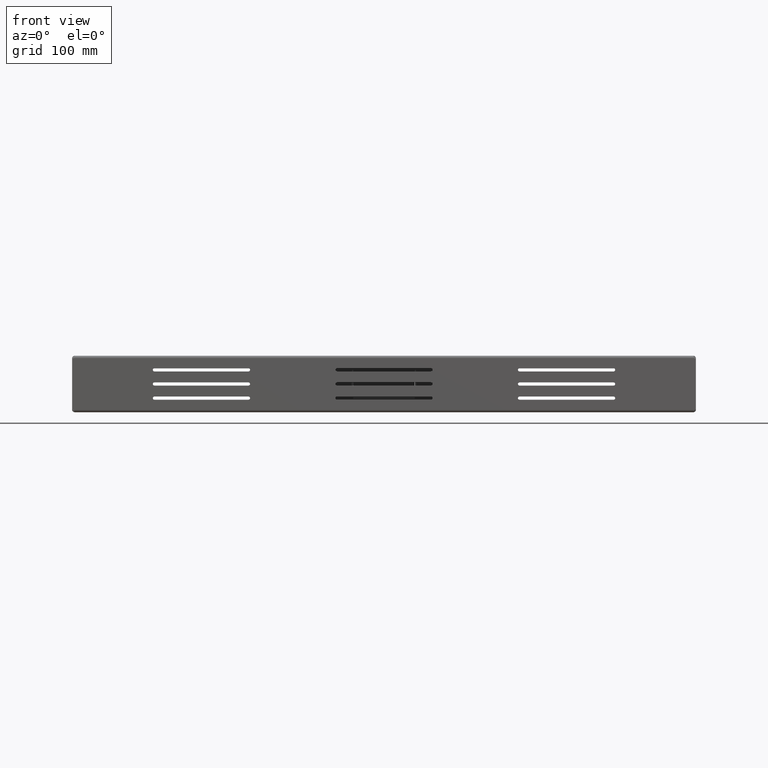
[diagram: clean part render]
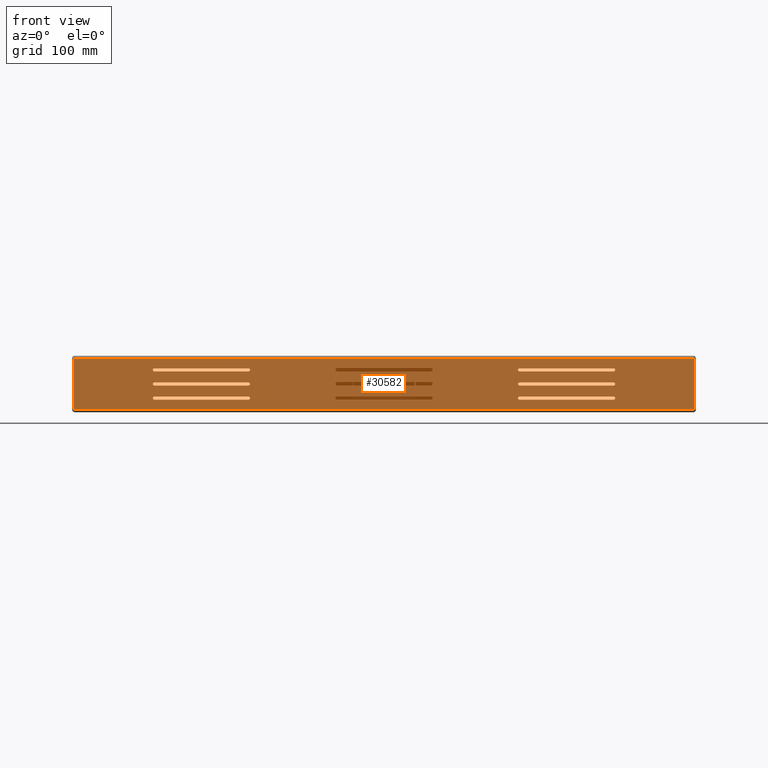
[diagram: same view with one face highlighted and labeled with its STEP entity id]
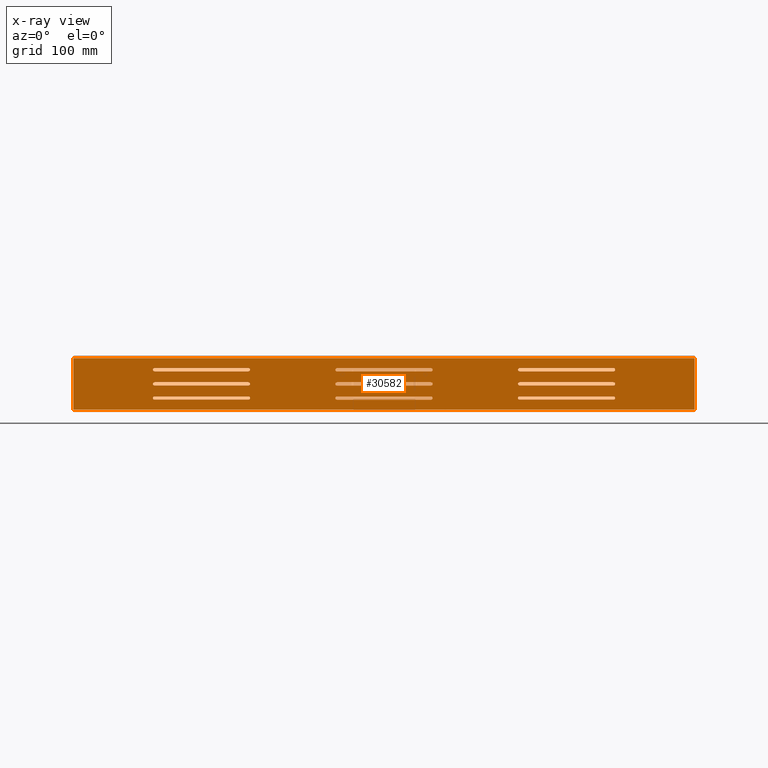
[diagram: x-ray of the same camera — body ghosted, the highlighted face saturated]
A machine part, front view. The second image highlights one B-rep face of the part: STEP entity #30582.
The next image is the same camera in x-ray: the body ghosted, the highlighted face saturated — about 0% of this face is hidden behind the body in this view.
In plain terms, the highlighted planar face has unit normal (0, 1, -0).
Its self-contained STEP definition (entity closure, byte-faithful):
#20 = EDGE_CURVE ( 'NONE', #9315, #2634, #32182, .T. ) ;
#214 = EDGE_CURVE ( 'NONE', #22930, #40256, #17373, .T. ) ;
#512 = ORIENTED_EDGE ( 'NONE', *, *, #6791, .F. ) ;
#641 = VERTEX_POINT ( 'NONE', #18729 ) ;
#642 = CARTESIAN_POINT ( 'NONE',  ( -494.9292893218815800, -301.0000000000004000, -86.00000000000000000 ) ) ;
#795 = DIRECTION ( 'NONE',  ( 0.0000000000000000000, 0.0000000000000000000, -1.000000000000000000 ) ) ;
#833 = CIRCLE ( 'NONE', #25017, 2.499999999999992000 ) ;
#983 = DIRECTION ( 'NONE',  ( -1.116924572057501200E-016, 1.000000000000000000, -3.784851220313033900E-015 ) ) ;
#987 = EDGE_LOOP ( 'NONE', ( #25687, #33831, #42092, #34328 ) ) ;
#1141 = ORIENTED_EDGE ( 'NONE', *, *, #33378, .F. ) ;
#1250 = LINE ( 'NONE', #26383, #36205 ) ;
#1367 = VECTOR ( 'NONE', #14436, 1000.000000000000000 ) ;
#1477 = VERTEX_POINT ( 'NONE', #41743 ) ;
#1561 = DIRECTION ( 'NONE',  ( -1.116924572057501200E-016, -1.000000000000000000, 3.784851220313033900E-015 ) ) ;
#1674 = DIRECTION ( 'NONE',  ( 0.0000000000000000000, 0.0000000000000000000, -1.000000000000000000 ) ) ;
#1745 = FACE_OUTER_BOUND ( 'NONE', #2015, .T. ) ;
#1853 = CARTESIAN_POINT ( 'NONE',  ( -74.99999999999995700, -301.0000000000002800, -65.00000000000005700 ) ) ;
#1938 = VERTEX_POINT ( 'NONE', #37527 ) ;
#2015 = EDGE_LOOP ( 'NONE', ( #5988, #14371, #39537, #7112 ) ) ;
#2549 = CARTESIAN_POINT ( 'NONE',  ( 215.9133126665040300, -301.0000000000003400, -65.00000000000002800 ) ) ;
#2634 = VERTEX_POINT ( 'NONE', #31417 ) ;
#2640 = EDGE_CURVE ( 'NONE', #37675, #44774, #13353, .T. ) ;
#2723 = CARTESIAN_POINT ( 'NONE',  ( -494.9292893218816400, -301.0000000000000000, -4.000000000000051500 ) ) ;
#2930 = CIRCLE ( 'NONE', #3617, 2.499999999999992000 ) ;
#2951 = DIRECTION ( 'NONE',  ( 0.0000000000000000000, 0.0000000000000000000, -1.000000000000000000 ) ) ;
#3019 = CARTESIAN_POINT ( 'NONE',  ( 215.9133126665039700, -301.0000000000002800, -45.00000000000005700 ) ) ;
#3038 = LINE ( 'NONE', #26182, #39059 ) ;
#3093 = CARTESIAN_POINT ( 'NONE',  ( 365.9133126665039400, -301.0000000000001700, -20.00000000000006800 ) ) ;
#3202 = EDGE_LOOP ( 'NONE', ( #512, #34454, #8563, #19621 ) ) ;
#3348 = VERTEX_POINT ( 'NONE', #40950 ) ;
#3487 = DIRECTION ( 'NONE',  ( 0.0000000000000000000, -3.784851220313033900E-015, -1.000000000000000000 ) ) ;
#3598 = EDGE_CURVE ( 'NONE', #21016, #8881, #34076, .T. ) ;
#3617 = AXIS2_PLACEMENT_3D ( 'NONE', #16741, #41226, #20285 ) ;
#3902 = CARTESIAN_POINT ( 'NONE',  ( 75.00000000000001400, -301.0000000000002300, -45.00000000000002800 ) ) ;
#3926 = EDGE_CURVE ( 'NONE', #29803, #9315, #33513, .T. ) ;
#3928 = CARTESIAN_POINT ( 'NONE',  ( -74.99999999999995700, -301.0000000000003400, -70.00000000000005700 ) ) ;
#4041 = EDGE_CURVE ( 'NONE', #32472, #24173, #1250, .T. ) ;
#4076 = AXIS2_PLACEMENT_3D ( 'NONE', #20068, #7379, #28334 ) ;
#4307 = VECTOR ( 'NONE', #43540, 1000.000000000000000 ) ;
#4324 = CARTESIAN_POINT ( 'NONE',  ( 75.00000000000001400, -301.0000000000001700, -22.50000000000011400 ) ) ;
#4744 = EDGE_CURVE ( 'NONE', #20620, #3348, #23582, .T. ) ;
#4916 = ORIENTED_EDGE ( 'NONE', *, *, #10004, .F. ) ;
#5094 = LINE ( 'NONE', #22208, #6181 ) ;
#5147 = CARTESIAN_POINT ( 'NONE',  ( 365.9133126665039400, -301.0000000000002800, -45.00000000000003600 ) ) ;
#5171 = VECTOR ( 'NONE', #3487, 1000.000000000000000 ) ;
#5201 = VERTEX_POINT ( 'NONE', #32420 ) ;
#5227 = CARTESIAN_POINT ( 'NONE',  ( 215.9133126665039700, -301.0000000000002800, -42.50000000000006400 ) ) ;
#5259 = ORIENTED_EDGE ( 'NONE', *, *, #43804, .F. ) ;
#5389 = CIRCLE ( 'NONE', #30179, 2.499999999999995100 ) ;
#5456 = DIRECTION ( 'NONE',  ( -1.116924572057501200E-016, -1.000000000000000000, 3.784851220313033900E-015 ) ) ;
#5517 = EDGE_CURVE ( 'NONE', #21277, #29142, #21873, .T. ) ;
#5592 = VERTEX_POINT ( 'NONE', #45074 ) ;
#5703 = CARTESIAN_POINT ( 'NONE',  ( -215.9133126665039700, -301.0000000000001700, -25.00000000000005300 ) ) ;
#5912 = VERTEX_POINT ( 'NONE', #38025 ) ;
#5988 = ORIENTED_EDGE ( 'NONE', *, *, #36447, .T. ) ;
#6061 = CARTESIAN_POINT ( 'NONE',  ( 365.9133126665038800, -301.0000000000001700, -22.50000000000005700 ) ) ;
#6096 = DIRECTION ( 'NONE',  ( -1.000000000000000000, 0.0000000000000000000, 0.0000000000000000000 ) ) ;
#6181 = VECTOR ( 'NONE', #43196, 1000.000000000000000 ) ;
#6281 = ORIENTED_EDGE ( 'NONE', *, *, #32341, .F. ) ;
#6386 = DIRECTION ( 'NONE',  ( 0.0000000000000000000, 0.0000000000000000000, -1.000000000000000000 ) ) ;
#6643 = DIRECTION ( 'NONE',  ( 1.000000000000000000, -0.0000000000000000000, -0.0000000000000000000 ) ) ;
#6791 = EDGE_CURVE ( 'NONE', #42081, #5592, #39313, .T. ) ;
#6990 = LINE ( 'NONE', #30551, #44223 ) ;
#7024 = CARTESIAN_POINT ( 'NONE',  ( -365.9133126665039400, -301.0000000000001700, -20.00000000000006800 ) ) ;
#7112 = ORIENTED_EDGE ( 'NONE', *, *, #21654, .T. ) ;
#7232 = VERTEX_POINT ( 'NONE', #1853 ) ;
#7318 = AXIS2_PLACEMENT_3D ( 'NONE', #18206, #42700, #21714 ) ;
#7353 = DIRECTION ( 'NONE',  ( 0.0000000000000000000, 0.0000000000000000000, -1.000000000000000000 ) ) ;
#7371 = CARTESIAN_POINT ( 'NONE',  ( 75.00000000000001400, -301.0000000000001700, -25.00000000000012100 ) ) ;
#7379 = DIRECTION ( 'NONE',  ( 1.116924572057501200E-016, 1.000000000000000000, -3.784851220313033900E-015 ) ) ;
#7799 = VECTOR ( 'NONE', #22307, 1000.000000000000000 ) ;
#8044 = DIRECTION ( 'NONE',  ( 0.0000000000000000000, 0.0000000000000000000, -1.000000000000000000 ) ) ;
#8267 = DIRECTION ( 'NONE',  ( 1.000000000000000000, 0.0000000000000000000, 0.0000000000000000000 ) ) ;
#8327 = CARTESIAN_POINT ( 'NONE',  ( -365.9133126665039400, -301.0000000000002800, -45.00000000000003600 ) ) ;
#8563 = ORIENTED_EDGE ( 'NONE', *, *, #9022, .F. ) ;
#8738 = DIRECTION ( 'NONE',  ( 1.000000000000000000, -0.0000000000000000000, -0.0000000000000000000 ) ) ;
#8812 = FACE_BOUND ( 'NONE', #22240, .T. ) ;
#8881 = VERTEX_POINT ( 'NONE', #36481 ) ;
#9022 = EDGE_CURVE ( 'NONE', #43318, #24034, #38043, .T. ) ;
#9036 = ORIENTED_EDGE ( 'NONE', *, *, #39440, .T. ) ;
#9172 = VECTOR ( 'NONE', #6643, 1000.000000000000000 ) ;
#9315 = VERTEX_POINT ( 'NONE', #14350 ) ;
#9341 = ORIENTED_EDGE ( 'NONE', *, *, #26210, .F. ) ;
#9550 = DIRECTION ( 'NONE',  ( 0.0000000000000000000, 0.0000000000000000000, -1.000000000000000000 ) ) ;
#9650 = LINE ( 'NONE', #642, #35357 ) ;
#9898 = FACE_BOUND ( 'NONE', #10387, .T. ) ;
#9913 = CARTESIAN_POINT ( 'NONE',  ( -215.9133126665040300, -301.0000000000003400, -67.50000000000002800 ) ) ;
#10004 = EDGE_CURVE ( 'NONE', #1938, #21016, #3038, .T. ) ;
#10387 = EDGE_LOOP ( 'NONE', ( #45060, #26483, #36670, #30077 ) ) ;
#10485 = CARTESIAN_POINT ( 'NONE',  ( 494.9292893218815800, -301.0000000000001100, -1.999999999999992700 ) ) ;
#10896 = PLANE ( 'NONE',  #4076 ) ;
#11071 = DIRECTION ( 'NONE',  ( -1.000000000000000000, -3.700743415417191600E-016, 0.0000000000000000000 ) ) ;
#11256 = DIRECTION ( 'NONE',  ( -1.116924572057501200E-016, -1.000000000000000000, 3.784851220313033900E-015 ) ) ;
#11566 = CARTESIAN_POINT ( 'NONE',  ( 215.9133126665040300, -301.0000000000003400, -67.50000000000002800 ) ) ;
#11785 = ORIENTED_EDGE ( 'NONE', *, *, #18642, .F. ) ;
#11824 = DIRECTION ( 'NONE',  ( 0.0000000000000000000, 0.0000000000000000000, -1.000000000000000000 ) ) ;
#11913 = AXIS2_PLACEMENT_3D ( 'NONE', #30324, #1561, #31701 ) ;
#12723 = EDGE_CURVE ( 'NONE', #42919, #641, #44407, .T. ) ;
#12808 = ORIENTED_EDGE ( 'NONE', *, *, #14895, .T. ) ;
#13066 = ORIENTED_EDGE ( 'NONE', *, *, #14067, .F. ) ;
#13122 = AXIS2_PLACEMENT_3D ( 'NONE', #38575, #17677, #42155 ) ;
#13325 = VECTOR ( 'NONE', #40142, 1000.000000000000000 ) ;
#13353 = LINE ( 'NONE', #10485, #5171 ) ;
#13447 = DIRECTION ( 'NONE',  ( -1.000000000000000000, 0.0000000000000000000, 0.0000000000000000000 ) ) ;
#13581 = LINE ( 'NONE', #33137, #4307 ) ;
#13696 = ORIENTED_EDGE ( 'NONE', *, *, #41294, .T. ) ;
#14067 = EDGE_CURVE ( 'NONE', #28870, #30541, #32232, .T. ) ;
#14303 = AXIS2_PLACEMENT_3D ( 'NONE', #8327, #32801, #11824 ) ;
#14350 = CARTESIAN_POINT ( 'NONE',  ( 75.00000000000001400, -301.0000000000002300, -42.50000000000000000 ) ) ;
#14371 = ORIENTED_EDGE ( 'NONE', *, *, #2640, .F. ) ;
#14436 = DIRECTION ( 'NONE',  ( -1.000000000000000000, 3.700743415417189100E-016, 0.0000000000000000000 ) ) ;
#14439 = CARTESIAN_POINT ( 'NONE',  ( 215.9133126665040300, -301.0000000000003400, -70.00000000000004300 ) ) ;
#14781 = EDGE_CURVE ( 'NONE', #5201, #29803, #27788, .T. ) ;
#14786 = DIRECTION ( 'NONE',  ( 0.0000000000000000000, 0.0000000000000000000, -1.000000000000000000 ) ) ;
#14895 = EDGE_CURVE ( 'NONE', #24173, #20620, #42002, .T. ) ;
#14896 = LINE ( 'NONE', #43444, #7799 ) ;
#15046 = AXIS2_PLACEMENT_3D ( 'NONE', #35718, #11256, #14786 ) ;
#15145 = LINE ( 'NONE', #32399, #44189 ) ;
#15330 = DIRECTION ( 'NONE',  ( -1.000000000000000000, 0.0000000000000000000, 0.0000000000000000000 ) ) ;
#15545 = CARTESIAN_POINT ( 'NONE',  ( 75.00000000000001400, -301.0000000000003400, -70.00000000000005700 ) ) ;
#15823 = ORIENTED_EDGE ( 'NONE', *, *, #18512, .T. ) ;
#15854 = AXIS2_PLACEMENT_3D ( 'NONE', #33448, #5456, #22869 ) ;
#16453 = CARTESIAN_POINT ( 'NONE',  ( -215.9133126665039700, -301.0000000000002800, -42.50000000000006400 ) ) ;
#16473 = ORIENTED_EDGE ( 'NONE', *, *, #19057, .F. ) ;
#16705 = DIRECTION ( 'NONE',  ( 0.0000000000000000000, 0.0000000000000000000, -1.000000000000000000 ) ) ;
#16741 = CARTESIAN_POINT ( 'NONE',  ( -215.9133126665039700, -301.0000000000001700, -22.50000000000005700 ) ) ;
#17154 = VECTOR ( 'NONE', #8267, 1000.000000000000000 ) ;
#17373 = CIRCLE ( 'NONE', #39814, 2.499999999999992000 ) ;
#17602 = EDGE_CURVE ( 'NONE', #5592, #43318, #833, .T. ) ;
#17677 = DIRECTION ( 'NONE',  ( -1.116924572057501200E-016, -1.000000000000000000, 3.784851220313033900E-015 ) ) ;
#17775 = CARTESIAN_POINT ( 'NONE',  ( 494.9292893218816400, -301.0000000000001100, -4.000000000000024000 ) ) ;
#18036 = ORIENTED_EDGE ( 'NONE', *, *, #41592, .F. ) ;
#18083 = FACE_BOUND ( 'NONE', #31953, .T. ) ;
#18116 = EDGE_CURVE ( 'NONE', #40256, #29198, #26465, .T. ) ;
#18206 = CARTESIAN_POINT ( 'NONE',  ( -215.9133126665039700, -301.0000000000002800, -45.00000000000005700 ) ) ;
#18221 = CIRCLE ( 'NONE', #26244, 2.500000000000002200 ) ;
#18437 = VERTEX_POINT ( 'NONE', #24709 ) ;
#18478 = EDGE_LOOP ( 'NONE', ( #9036, #18969, #13696, #15823 ) ) ;
#18500 = DIRECTION ( 'NONE',  ( 0.0000000000000000000, 0.0000000000000000000, -1.000000000000000000 ) ) ;
#18512 = EDGE_CURVE ( 'NONE', #1477, #34418, #40113, .T. ) ;
#18642 = EDGE_CURVE ( 'NONE', #30541, #26308, #18221, .T. ) ;
#18676 = AXIS2_PLACEMENT_3D ( 'NONE', #32301, #28773, #35781 ) ;
#18697 = CIRCLE ( 'NONE', #14303, 2.499999999999995100 ) ;
#18729 = CARTESIAN_POINT ( 'NONE',  ( 75.00000000000001400, -301.0000000000002800, -65.00000000000004300 ) ) ;
#18969 = ORIENTED_EDGE ( 'NONE', *, *, #28055, .T. ) ;
#19057 = EDGE_CURVE ( 'NONE', #21287, #21277, #5094, .T. ) ;
#19189 = FACE_BOUND ( 'NONE', #29954, .T. ) ;
#19388 = DIRECTION ( 'NONE',  ( 1.000000000000000000, 0.0000000000000000000, 0.0000000000000000000 ) ) ;
#19444 = EDGE_CURVE ( 'NONE', #2634, #5201, #38385, .T. ) ;
#19477 = CARTESIAN_POINT ( 'NONE',  ( 75.00000000000001400, -301.0000000000002300, -42.50000000000000000 ) ) ;
#19621 = ORIENTED_EDGE ( 'NONE', *, *, #17602, .F. ) ;
#19913 = LINE ( 'NONE', #25402, #1367 ) ;
#20068 = CARTESIAN_POINT ( 'NONE',  ( -3.361942961893078900E-014, -301.0000000000000600, 1.146223179991909500E-012 ) ) ;
#20285 = DIRECTION ( 'NONE',  ( 0.0000000000000000000, 0.0000000000000000000, -1.000000000000000000 ) ) ;
#20324 = EDGE_CURVE ( 'NONE', #39610, #22930, #6990, .T. ) ;
#20478 = CARTESIAN_POINT ( 'NONE',  ( 215.9133126665039700, -301.0000000000002800, -47.50000000000004300 ) ) ;
#20504 = EDGE_CURVE ( 'NONE', #36096, #28870, #44750, .T. ) ;
#20620 = VERTEX_POINT ( 'NONE', #21780 ) ;
#21016 = VERTEX_POINT ( 'NONE', #7371 ) ;
#21277 = VERTEX_POINT ( 'NONE', #5227 ) ;
#21283 = EDGE_CURVE ( 'NONE', #39291, #42919, #42551, .T. ) ;
#21287 = VERTEX_POINT ( 'NONE', #22792 ) ;
#21654 = EDGE_CURVE ( 'NONE', #42035, #25433, #15145, .T. ) ;
#21685 = CARTESIAN_POINT ( 'NONE',  ( -365.9133126665040000, -301.0000000000001700, -47.50000000000002800 ) ) ;
#21714 = DIRECTION ( 'NONE',  ( 0.0000000000000000000, 0.0000000000000000000, -1.000000000000000000 ) ) ;
#21780 = CARTESIAN_POINT ( 'NONE',  ( -215.9133126665040300, -301.0000000000003400, -70.00000000000004300 ) ) ;
#21806 = VECTOR ( 'NONE', #15330, 1000.000000000000000 ) ;
#21810 = ORIENTED_EDGE ( 'NONE', *, *, #20504, .F. ) ;
#21873 = CIRCLE ( 'NONE', #33237, 2.499999999999988500 ) ;
#21902 = DIRECTION ( 'NONE',  ( 0.0000000000000000000, 0.0000000000000000000, -1.000000000000000000 ) ) ;
#22208 = CARTESIAN_POINT ( 'NONE',  ( 365.9133126665039400, -301.0000000000002800, -42.50000000000003600 ) ) ;
#22240 = EDGE_LOOP ( 'NONE', ( #13066, #21810, #5259, #11785 ) ) ;
#22307 = DIRECTION ( 'NONE',  ( 1.000000000000000000, -1.116924572057499000E-016, 5.584622860287507400E-017 ) ) ;
#22483 = VECTOR ( 'NONE', #11071, 1000.000000000000000 ) ;
#22652 = CARTESIAN_POINT ( 'NONE',  ( 365.9133126665038800, -301.0000000000004000, -70.00000000000004300 ) ) ;
#22792 = CARTESIAN_POINT ( 'NONE',  ( 365.9133126665040000, -301.0000000000002800, -42.50000000000003600 ) ) ;
#22862 = AXIS2_PLACEMENT_3D ( 'NONE', #44807, #23836, #2951 ) ;
#22869 = DIRECTION ( 'NONE',  ( 0.0000000000000000000, 0.0000000000000000000, -1.000000000000000000 ) ) ;
#22883 = VECTOR ( 'NONE', #37220, 1000.000000000000000 ) ;
#22930 = VERTEX_POINT ( 'NONE', #29670 ) ;
#23582 = LINE ( 'NONE', #24958, #22483 ) ;
#23649 = CARTESIAN_POINT ( 'NONE',  ( 365.9133126665039400, -301.0000000000003400, -65.00000000000002800 ) ) ;
#23836 = DIRECTION ( 'NONE',  ( -1.116924572057501200E-016, -1.000000000000000000, 3.784851220313033900E-015 ) ) ;
#23906 = CARTESIAN_POINT ( 'NONE',  ( 365.9133126665040000, -301.0000000000001700, -20.00000000000006800 ) ) ;
#23932 = VECTOR ( 'NONE', #8738, 1000.000000000000000 ) ;
#24034 = VERTEX_POINT ( 'NONE', #36989 ) ;
#24173 = VERTEX_POINT ( 'NONE', #35334 ) ;
#24709 = CARTESIAN_POINT ( 'NONE',  ( -74.99999999999995700, -301.0000000000001100, -20.00000000000010300 ) ) ;
#24789 = EDGE_CURVE ( 'NONE', #42035, #37675, #14896, .T. ) ;
#24944 = CARTESIAN_POINT ( 'NONE',  ( 365.9133126665038800, -301.0000000000004000, -70.00000000000004300 ) ) ;
#24956 = LINE ( 'NONE', #43630, #42499 ) ;
#24958 = CARTESIAN_POINT ( 'NONE',  ( -365.9133126665038800, -301.0000000000004000, -70.00000000000004300 ) ) ;
#25017 = AXIS2_PLACEMENT_3D ( 'NONE', #35925, #39427, #18500 ) ;
#25226 = DIRECTION ( 'NONE',  ( -1.116924572057501200E-016, -1.000000000000000000, 3.784851220313033900E-015 ) ) ;
#25395 = LINE ( 'NONE', #27736, #35795 ) ;
#25401 = CARTESIAN_POINT ( 'NONE',  ( -365.9133126665038800, -301.0000000000001700, -22.50000000000005700 ) ) ;
#25402 = CARTESIAN_POINT ( 'NONE',  ( 75.00000000000001400, -301.0000000000003400, -65.00000000000004300 ) ) ;
#25433 = VERTEX_POINT ( 'NONE', #27685 ) ;
#25687 = ORIENTED_EDGE ( 'NONE', *, *, #214, .T. ) ;
#25832 = DIRECTION ( 'NONE',  ( -1.000000000000000000, 3.700743415417189100E-016, 0.0000000000000000000 ) ) ;
#26066 = DIRECTION ( 'NONE',  ( -1.116924572057501200E-016, -1.000000000000000000, 3.784851220313033900E-015 ) ) ;
#26124 = AXIS2_PLACEMENT_3D ( 'NONE', #6061, #30517, #9550 ) ;
#26182 = CARTESIAN_POINT ( 'NONE',  ( 75.00000000000001400, -301.0000000000001700, -25.00000000000012100 ) ) ;
#26210 = EDGE_CURVE ( 'NONE', #18437, #1938, #42169, .T. ) ;
#26235 = DIRECTION ( 'NONE',  ( 1.000000000000000000, -0.0000000000000000000, -0.0000000000000000000 ) ) ;
#26244 = AXIS2_PLACEMENT_3D ( 'NONE', #11566, #32519, #8044 ) ;
#26308 = VERTEX_POINT ( 'NONE', #14439 ) ;
#26333 = VECTOR ( 'NONE', #28512, 1000.000000000000000 ) ;
#26383 = CARTESIAN_POINT ( 'NONE',  ( -365.9133126665038800, -301.0000000000003400, -65.00000000000002800 ) ) ;
#26465 = LINE ( 'NONE', #39721, #17154 ) ;
#26483 = ORIENTED_EDGE ( 'NONE', *, *, #3926, .F. ) ;
#26800 = ORIENTED_EDGE ( 'NONE', *, *, #21283, .F. ) ;
#26968 = AXIS2_PLACEMENT_3D ( 'NONE', #4324, #25226, #795 ) ;
#27393 = FACE_BOUND ( 'NONE', #3202, .T. ) ;
#27685 = CARTESIAN_POINT ( 'NONE',  ( -494.9292893218815800, -301.0000000000004000, -86.00000000000000000 ) ) ;
#27736 = CARTESIAN_POINT ( 'NONE',  ( -365.9133126665039400, -301.0000000000002800, -42.50000000000003600 ) ) ;
#27788 = LINE ( 'NONE', #31275, #9172 ) ;
#28055 = EDGE_CURVE ( 'NONE', #5912, #37114, #25395, .T. ) ;
#28301 = DIRECTION ( 'NONE',  ( -1.116924572057501200E-016, -1.000000000000000000, 3.784851220313033900E-015 ) ) ;
#28334 = DIRECTION ( 'NONE',  ( 0.0000000000000000000, 3.784851220313033900E-015, 1.000000000000000000 ) ) ;
#28445 = ORIENTED_EDGE ( 'NONE', *, *, #5517, .F. ) ;
#28512 = DIRECTION ( 'NONE',  ( 1.000000000000000000, -3.700743415417191600E-016, -0.0000000000000000000 ) ) ;
#28649 = EDGE_LOOP ( 'NONE', ( #35460, #41657, #12808, #33191 ) ) ;
#28773 = DIRECTION ( 'NONE',  ( -1.116924572057501200E-016, 1.000000000000000000, -3.784851220313033900E-015 ) ) ;
#28870 = VERTEX_POINT ( 'NONE', #23649 ) ;
#28875 = DIRECTION ( 'NONE',  ( 0.0000000000000000000, -3.784851220313033900E-015, -1.000000000000000000 ) ) ;
#29142 = VERTEX_POINT ( 'NONE', #20478 ) ;
#29198 = VERTEX_POINT ( 'NONE', #42241 ) ;
#29411 = CARTESIAN_POINT ( 'NONE',  ( 365.9133126665038800, -301.0000000000003400, -65.00000000000002800 ) ) ;
#29547 = EDGE_CURVE ( 'NONE', #3348, #32472, #37849, .T. ) ;
#29670 = CARTESIAN_POINT ( 'NONE',  ( -365.9133126665040000, -301.0000000000001100, -25.00000000000005300 ) ) ;
#29803 = VERTEX_POINT ( 'NONE', #42434 ) ;
#29945 = ORIENTED_EDGE ( 'NONE', *, *, #3598, .F. ) ;
#29954 = EDGE_LOOP ( 'NONE', ( #40341, #33969, #26800, #18036 ) ) ;
#30077 = ORIENTED_EDGE ( 'NONE', *, *, #19444, .F. ) ;
#30080 = VECTOR ( 'NONE', #13447, 1000.000000000000000 ) ;
#30179 = AXIS2_PLACEMENT_3D ( 'NONE', #5147, #26066, #1674 ) ;
#30324 = CARTESIAN_POINT ( 'NONE',  ( -74.99999999999995700, -301.0000000000002300, -45.00000000000002800 ) ) ;
#30517 = DIRECTION ( 'NONE',  ( -1.116924572057501200E-016, -1.000000000000000000, 3.784851220313033900E-015 ) ) ;
#30541 = VERTEX_POINT ( 'NONE', #2549 ) ;
#30551 = CARTESIAN_POINT ( 'NONE',  ( -365.9133126665039400, -301.0000000000001700, -25.00000000000005300 ) ) ;
#30582 = ADVANCED_FACE ( 'NONE', ( #19189, #9898, #38861, #36684, #1745, #27393, #18083, #8812, #44931, #35598 ), #10896, .F. ) ;
#30867 = DIRECTION ( 'NONE',  ( -1.116924572057501200E-016, 1.000000000000000000, -3.784851220313033900E-015 ) ) ;
#31275 = CARTESIAN_POINT ( 'NONE',  ( 75.00000000000001400, -301.0000000000002300, -47.50000000000004300 ) ) ;
#31417 = CARTESIAN_POINT ( 'NONE',  ( -74.99999999999995700, -301.0000000000002300, -42.50000000000000700 ) ) ;
#31701 = DIRECTION ( 'NONE',  ( 0.0000000000000000000, 0.0000000000000000000, -1.000000000000000000 ) ) ;
#31953 = EDGE_LOOP ( 'NONE', ( #16473, #6281, #34821, #28445 ) ) ;
#32182 = LINE ( 'NONE', #19477, #22883 ) ;
#32232 = LINE ( 'NONE', #29411, #21806 ) ;
#32301 = CARTESIAN_POINT ( 'NONE',  ( -365.9133126665038800, -301.0000000000003400, -67.50000000000002800 ) ) ;
#32341 = EDGE_CURVE ( 'NONE', #36576, #21287, #5389, .T. ) ;
#32349 = AXIS2_PLACEMENT_3D ( 'NONE', #9913, #30867, #6386 ) ;
#32350 = EDGE_CURVE ( 'NONE', #29142, #36576, #13581, .T. ) ;
#32399 = CARTESIAN_POINT ( 'NONE',  ( -494.9292893218815800, -301.0000000000000000, 1.146223179991909300E-012 ) ) ;
#32420 = CARTESIAN_POINT ( 'NONE',  ( -74.99999999999995700, -301.0000000000002300, -47.50000000000004300 ) ) ;
#32472 = VERTEX_POINT ( 'NONE', #39189 ) ;
#32514 = CARTESIAN_POINT ( 'NONE',  ( 215.9133126665039700, -301.0000000000001700, -25.00000000000005300 ) ) ;
#32519 = DIRECTION ( 'NONE',  ( -1.116924572057501200E-016, -1.000000000000000000, 3.784851220313033900E-015 ) ) ;
#32678 = DIRECTION ( 'NONE',  ( 1.000000000000000000, -0.0000000000000000000, -0.0000000000000000000 ) ) ;
#32801 = DIRECTION ( 'NONE',  ( -1.116924572057501200E-016, 1.000000000000000000, -3.784851220313033900E-015 ) ) ;
#33137 = CARTESIAN_POINT ( 'NONE',  ( 365.9133126665039400, -301.0000000000002800, -47.50000000000002800 ) ) ;
#33191 = ORIENTED_EDGE ( 'NONE', *, *, #4744, .T. ) ;
#33237 = AXIS2_PLACEMENT_3D ( 'NONE', #3019, #44731, #16705 ) ;
#33378 = EDGE_CURVE ( 'NONE', #8881, #18437, #24956, .T. ) ;
#33448 = CARTESIAN_POINT ( 'NONE',  ( 75.00000000000001400, -301.0000000000003400, -67.50000000000005700 ) ) ;
#33513 = CIRCLE ( 'NONE', #35468, 2.500000000000016000 ) ;
#33831 = ORIENTED_EDGE ( 'NONE', *, *, #18116, .T. ) ;
#33969 = ORIENTED_EDGE ( 'NONE', *, *, #12723, .F. ) ;
#34076 = CIRCLE ( 'NONE', #26968, 2.500000000000009300 ) ;
#34328 = ORIENTED_EDGE ( 'NONE', *, *, #20324, .T. ) ;
#34418 = VERTEX_POINT ( 'NONE', #21685 ) ;
#34454 = ORIENTED_EDGE ( 'NONE', *, *, #43554, .F. ) ;
#34821 = ORIENTED_EDGE ( 'NONE', *, *, #32350, .F. ) ;
#35334 = CARTESIAN_POINT ( 'NONE',  ( -215.9133126665040300, -301.0000000000003400, -65.00000000000002800 ) ) ;
#35357 = VECTOR ( 'NONE', #32678, 1000.000000000000000 ) ;
#35369 = CARTESIAN_POINT ( 'NONE',  ( 494.9292893218815800, -301.0000000000004500, -86.00000000000000000 ) ) ;
#35411 = DIRECTION ( 'NONE',  ( 1.000000000000000000, -0.0000000000000000000, -0.0000000000000000000 ) ) ;
#35460 = ORIENTED_EDGE ( 'NONE', *, *, #29547, .T. ) ;
#35468 = AXIS2_PLACEMENT_3D ( 'NONE', #3902, #28301, #7353 ) ;
#35598 = FACE_BOUND ( 'NONE', #28649, .T. ) ;
#35718 = CARTESIAN_POINT ( 'NONE',  ( -74.99999999999995700, -301.0000000000001100, -22.50000000000011400 ) ) ;
#35781 = DIRECTION ( 'NONE',  ( 0.0000000000000000000, 0.0000000000000000000, -1.000000000000000000 ) ) ;
#35795 = VECTOR ( 'NONE', #41958, 1000.000000000000000 ) ;
#35925 = CARTESIAN_POINT ( 'NONE',  ( 215.9133126665039700, -301.0000000000001700, -22.50000000000005700 ) ) ;
#36096 = VERTEX_POINT ( 'NONE', #22652 ) ;
#36205 = VECTOR ( 'NONE', #19388, 1000.000000000000000 ) ;
#36209 = CARTESIAN_POINT ( 'NONE',  ( 365.9133126665039400, -301.0000000000002800, -47.50000000000002800 ) ) ;
#36447 = EDGE_CURVE ( 'NONE', #25433, #44774, #9650, .T. ) ;
#36481 = CARTESIAN_POINT ( 'NONE',  ( 75.00000000000001400, -301.0000000000001100, -20.00000000000009900 ) ) ;
#36576 = VERTEX_POINT ( 'NONE', #36209 ) ;
#36670 = ORIENTED_EDGE ( 'NONE', *, *, #14781, .F. ) ;
#36684 = FACE_BOUND ( 'NONE', #18478, .T. ) ;
#36693 = CARTESIAN_POINT ( 'NONE',  ( 75.00000000000001400, -301.0000000000003400, -70.00000000000005700 ) ) ;
#36989 = CARTESIAN_POINT ( 'NONE',  ( 365.9133126665039400, -301.0000000000001700, -25.00000000000005300 ) ) ;
#37114 = VERTEX_POINT ( 'NONE', #16453 ) ;
#37220 = DIRECTION ( 'NONE',  ( -1.000000000000000000, 0.0000000000000000000, 0.0000000000000000000 ) ) ;
#37295 = CIRCLE ( 'NONE', #26124, 2.499999999999992000 ) ;
#37527 = CARTESIAN_POINT ( 'NONE',  ( -74.99999999999995700, -301.0000000000001700, -25.00000000000012100 ) ) ;
#37675 = VERTEX_POINT ( 'NONE', #17775 ) ;
#37783 = EDGE_CURVE ( 'NONE', #641, #7232, #19913, .T. ) ;
#37849 = CIRCLE ( 'NONE', #18676, 2.500000000000002200 ) ;
#38025 = CARTESIAN_POINT ( 'NONE',  ( -365.9133126665039400, -301.0000000000002800, -42.50000000000003600 ) ) ;
#38043 = LINE ( 'NONE', #41708, #45217 ) ;
#38385 = CIRCLE ( 'NONE', #11913, 2.500000000000016000 ) ;
#38575 = CARTESIAN_POINT ( 'NONE',  ( 365.9133126665038800, -301.0000000000003400, -67.50000000000002800 ) ) ;
#38861 = FACE_BOUND ( 'NONE', #43228, .T. ) ;
#39059 = VECTOR ( 'NONE', #26235, 1000.000000000000000 ) ;
#39189 = CARTESIAN_POINT ( 'NONE',  ( -365.9133126665038800, -301.0000000000003400, -65.00000000000002800 ) ) ;
#39291 = VERTEX_POINT ( 'NONE', #3928 ) ;
#39313 = LINE ( 'NONE', #3093, #30080 ) ;
#39427 = DIRECTION ( 'NONE',  ( -1.116924572057501200E-016, -1.000000000000000000, 3.784851220313033900E-015 ) ) ;
#39440 = EDGE_CURVE ( 'NONE', #34418, #5912, #18697, .T. ) ;
#39537 = ORIENTED_EDGE ( 'NONE', *, *, #24789, .F. ) ;
#39610 = VERTEX_POINT ( 'NONE', #5703 ) ;
#39721 = CARTESIAN_POINT ( 'NONE',  ( -365.9133126665039400, -301.0000000000001700, -20.00000000000006800 ) ) ;
#39814 = AXIS2_PLACEMENT_3D ( 'NONE', #25401, #983, #21902 ) ;
#40113 = LINE ( 'NONE', #43699, #13325 ) ;
#40142 = DIRECTION ( 'NONE',  ( -1.000000000000000000, 0.0000000000000000000, 9.251858538542971600E-017 ) ) ;
#40256 = VERTEX_POINT ( 'NONE', #7024 ) ;
#40341 = ORIENTED_EDGE ( 'NONE', *, *, #37783, .F. ) ;
#40950 = CARTESIAN_POINT ( 'NONE',  ( -365.9133126665039400, -301.0000000000002800, -70.00000000000004300 ) ) ;
#41226 = DIRECTION ( 'NONE',  ( -1.116924572057501200E-016, 1.000000000000000000, -3.784851220313033900E-015 ) ) ;
#41294 = EDGE_CURVE ( 'NONE', #37114, #1477, #44318, .T. ) ;
#41528 = CIRCLE ( 'NONE', #22862, 2.500000000000002200 ) ;
#41592 = EDGE_CURVE ( 'NONE', #7232, #39291, #41528, .T. ) ;
#41657 = ORIENTED_EDGE ( 'NONE', *, *, #4041, .T. ) ;
#41708 = CARTESIAN_POINT ( 'NONE',  ( 365.9133126665039400, -301.0000000000001700, -25.00000000000005300 ) ) ;
#41743 = CARTESIAN_POINT ( 'NONE',  ( -215.9133126665039700, -301.0000000000002800, -47.50000000000004300 ) ) ;
#41958 = DIRECTION ( 'NONE',  ( 1.000000000000000000, 3.700743415417188600E-016, -1.387778780781445700E-016 ) ) ;
#42002 = CIRCLE ( 'NONE', #32349, 2.500000000000002200 ) ;
#42035 = VERTEX_POINT ( 'NONE', #2723 ) ;
#42081 = VERTEX_POINT ( 'NONE', #23906 ) ;
#42092 = ORIENTED_EDGE ( 'NONE', *, *, #43125, .T. ) ;
#42155 = DIRECTION ( 'NONE',  ( 0.0000000000000000000, 0.0000000000000000000, -1.000000000000000000 ) ) ;
#42169 = CIRCLE ( 'NONE', #15046, 2.500000000000009300 ) ;
#42241 = CARTESIAN_POINT ( 'NONE',  ( -215.9133126665039700, -301.0000000000001700, -20.00000000000006800 ) ) ;
#42434 = CARTESIAN_POINT ( 'NONE',  ( 75.00000000000001400, -301.0000000000002300, -47.50000000000004300 ) ) ;
#42499 = VECTOR ( 'NONE', #25832, 1000.000000000000000 ) ;
#42551 = LINE ( 'NONE', #36693, #23932 ) ;
#42700 = DIRECTION ( 'NONE',  ( -1.116924572057501200E-016, 1.000000000000000000, -3.784851220313033900E-015 ) ) ;
#42919 = VERTEX_POINT ( 'NONE', #15545 ) ;
#43125 = EDGE_CURVE ( 'NONE', #29198, #39610, #2930, .T. ) ;
#43196 = DIRECTION ( 'NONE',  ( -1.000000000000000000, 3.700743415417188600E-016, -1.387778780781445700E-016 ) ) ;
#43228 = EDGE_LOOP ( 'NONE', ( #1141, #29945, #4916, #9341 ) ) ;
#43318 = VERTEX_POINT ( 'NONE', #32514 ) ;
#43444 = CARTESIAN_POINT ( 'NONE',  ( 497.0000000000002300, -301.0000000000001100, -3.999999999999995600 ) ) ;
#43540 = DIRECTION ( 'NONE',  ( 1.000000000000000000, -0.0000000000000000000, 9.251858538542971600E-017 ) ) ;
#43554 = EDGE_CURVE ( 'NONE', #24034, #42081, #37295, .T. ) ;
#43630 = CARTESIAN_POINT ( 'NONE',  ( 75.00000000000001400, -301.0000000000001700, -20.00000000000009900 ) ) ;
#43699 = CARTESIAN_POINT ( 'NONE',  ( -365.9133126665039400, -301.0000000000002800, -47.50000000000002800 ) ) ;
#43804 = EDGE_CURVE ( 'NONE', #26308, #36096, #44975, .T. ) ;
#44189 = VECTOR ( 'NONE', #28875, 1000.000000000000000 ) ;
#44223 = VECTOR ( 'NONE', #6096, 1000.000000000000000 ) ;
#44318 = CIRCLE ( 'NONE', #7318, 2.499999999999988500 ) ;
#44407 = CIRCLE ( 'NONE', #15854, 2.500000000000002200 ) ;
#44731 = DIRECTION ( 'NONE',  ( -1.116924572057501200E-016, -1.000000000000000000, 3.784851220313033900E-015 ) ) ;
#44750 = CIRCLE ( 'NONE', #13122, 2.500000000000002200 ) ;
#44774 = VERTEX_POINT ( 'NONE', #35369 ) ;
#44807 = CARTESIAN_POINT ( 'NONE',  ( -74.99999999999995700, -301.0000000000002800, -67.50000000000005700 ) ) ;
#44931 = FACE_BOUND ( 'NONE', #987, .T. ) ;
#44975 = LINE ( 'NONE', #24944, #26333 ) ;
#45060 = ORIENTED_EDGE ( 'NONE', *, *, #20, .F. ) ;
#45074 = CARTESIAN_POINT ( 'NONE',  ( 215.9133126665039700, -301.0000000000001700, -20.00000000000006800 ) ) ;
#45217 = VECTOR ( 'NONE', #35411, 1000.000000000000000 ) ;